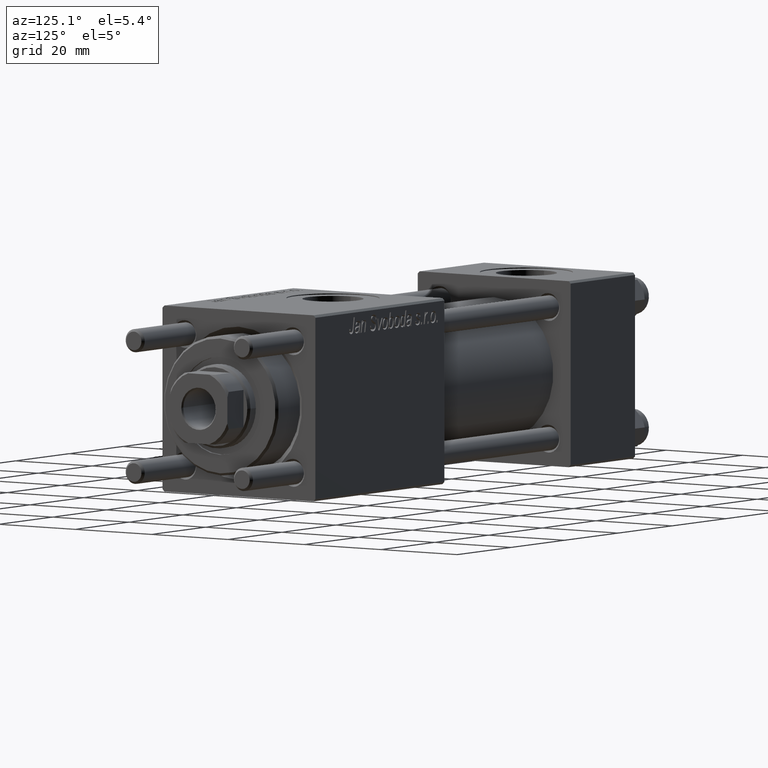
[diagram: clean part render]
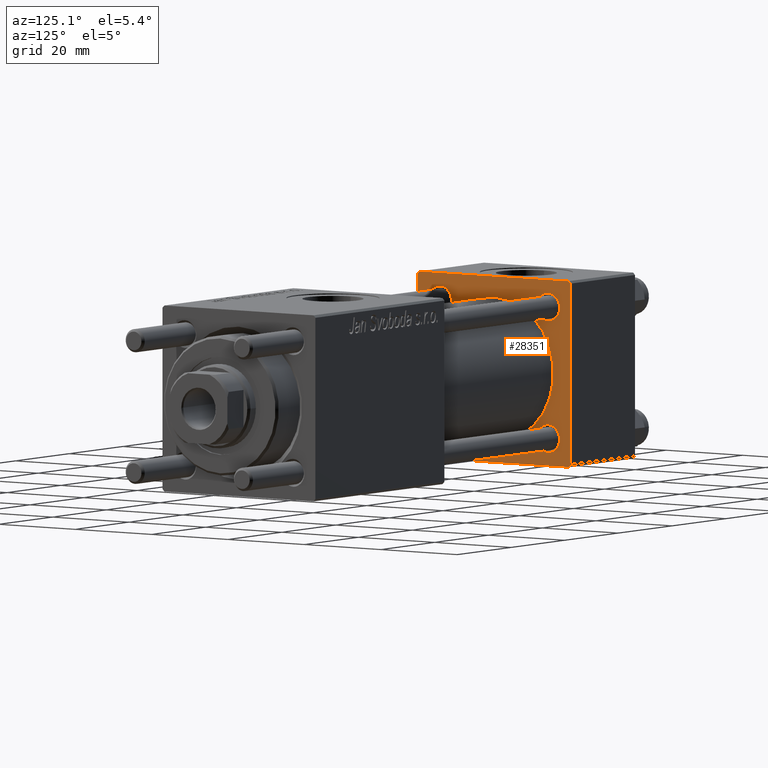
[diagram: same view with one face highlighted and labeled with its STEP entity id]
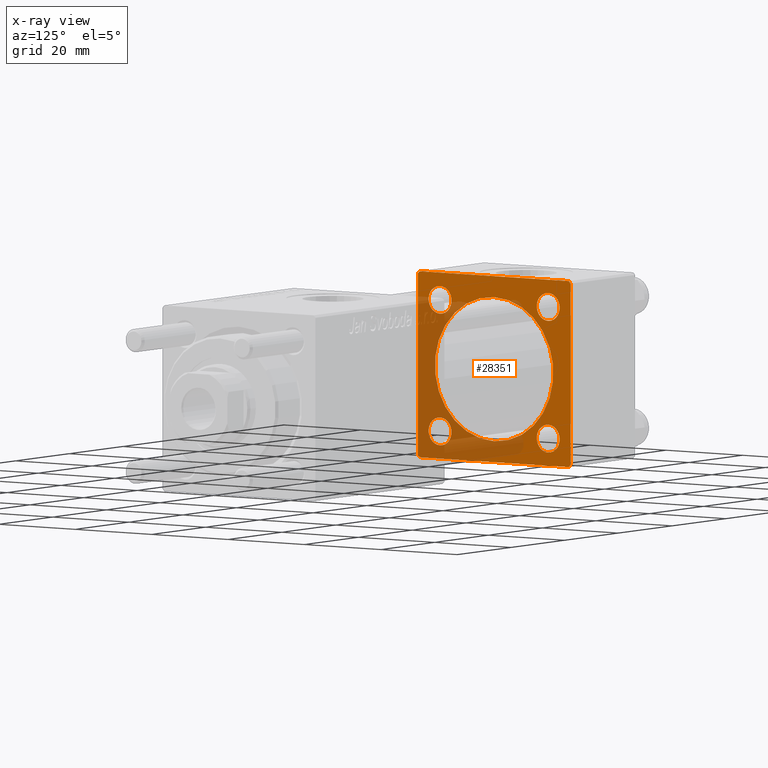
[diagram: x-ray of the same camera — body ghosted, the highlighted face saturated]
A machine part, auxiliary view. The second image highlights one B-rep face of the part: STEP entity #28351.
The next image is the same camera in x-ray: the body ghosted, the highlighted face saturated — about 40% of this face is hidden behind the body in this view.
In plain terms, the highlighted planar face has unit normal (-1, 0, 0).
Its self-contained STEP definition (entity closure, byte-faithful):
#465 = CARTESIAN_POINT ( 'NONE',  ( 24.00000000000000000, -19.50000000000000711, -20.00000000000000000 ) ) ;
#1455 = AXIS2_PLACEMENT_3D ( 'NONE', #35760, #9673, #42703 ) ;
#1502 = ORIENTED_EDGE ( 'NONE', *, *, #41085, .F. ) ;
#2047 = VERTEX_POINT ( 'NONE', #10583 ) ;
#2170 = CARTESIAN_POINT ( 'NONE',  ( 24.00000000000000000, 14.14999999999999858, -17.14999999999997726 ) ) ;
#2598 = CIRCLE ( 'NONE', #26363, 3.000000000000004441 ) ;
#3043 = CIRCLE ( 'NONE', #49737, 2.999999999999973355 ) ;
#3245 = CIRCLE ( 'NONE', #10591, 3.000000000000004441 ) ;
#3399 = CIRCLE ( 'NONE', #49163, 15.50000000000000000 ) ;
#3492 = ORIENTED_EDGE ( 'NONE', *, *, #8983, .F. ) ;
#3561 = CARTESIAN_POINT ( 'NONE',  ( 24.00000000000000000, -7.038826752868131828E-16, -15.50000000000000000 ) ) ;
#3633 = EDGE_CURVE ( 'NONE', #46264, #26709, #3245, .T. ) ;
#3929 = FACE_BOUND ( 'NONE', #23457, .T. ) ;
#3942 = VECTOR ( 'NONE', #40634, 1000.000000000000114 ) ;
#4045 = ORIENTED_EDGE ( 'NONE', *, *, #32135, .T. ) ;
#4428 = EDGE_CURVE ( 'NONE', #18234, #34125, #53621, .T. ) ;
#4508 = FACE_BOUND ( 'NONE', #38433, .T. ) ;
#4876 = CARTESIAN_POINT ( 'NONE',  ( 24.00000000000000000, 19.50000000000000711, -20.00000000000000711 ) ) ;
#6082 = CARTESIAN_POINT ( 'NONE',  ( 24.00000000000000000, -20.00000000000000000, -19.49999999999999645 ) ) ;
#6222 = DIRECTION ( 'NONE',  ( -1.000000000000000000, -0.000000000000000000, -0.000000000000000000 ) ) ;
#6750 = DIRECTION ( 'NONE',  ( 0.000000000000000000, 0.000000000000000000, -1.000000000000000000 ) ) ;
#6846 = VERTEX_POINT ( 'NONE', #43049 ) ;
#7362 = LINE ( 'NONE', #43157, #44113 ) ;
#7674 = ORIENTED_EDGE ( 'NONE', *, *, #49479, .T. ) ;
#8273 = CARTESIAN_POINT ( 'NONE',  ( 24.00000000000000000, 19.50000000000000000, 20.00000000000000000 ) ) ;
#8525 = VECTOR ( 'NONE', #16449, 999.9999999999998863 ) ;
#8688 = CARTESIAN_POINT ( 'NONE',  ( 24.00000000000000000, 19.50000000000000000, 20.00000000000000000 ) ) ;
#8983 = EDGE_CURVE ( 'NONE', #20603, #52058, #3399, .T. ) ;
#8991 = ORIENTED_EDGE ( 'NONE', *, *, #29021, .T. ) ;
#9624 = ORIENTED_EDGE ( 'NONE', *, *, #16831, .T. ) ;
#9673 = DIRECTION ( 'NONE',  ( -1.000000000000000000, -0.000000000000000000, -0.000000000000000000 ) ) ;
#10583 = CARTESIAN_POINT ( 'NONE',  ( 24.00000000000000000, -14.14999999999999503, -17.15000000000000924 ) ) ;
#10591 = AXIS2_PLACEMENT_3D ( 'NONE', #31453, #13961, #48927 ) ;
#11298 = EDGE_CURVE ( 'NONE', #26709, #46264, #43739, .T. ) ;
#11522 = CARTESIAN_POINT ( 'NONE',  ( 24.00000000000000000, -14.14999999999999503, -14.15000000000000391 ) ) ;
#11682 = DIRECTION ( 'NONE',  ( 1.000000000000000000, 0.000000000000000000, 0.000000000000000000 ) ) ;
#11735 = EDGE_CURVE ( 'NONE', #2047, #19619, #2598, .T. ) ;
#12066 = DIRECTION ( 'NONE',  ( 0.000000000000000000, 0.000000000000000000, 1.000000000000000000 ) ) ;
#12733 = EDGE_LOOP ( 'NONE', ( #26362, #31269 ) ) ;
#13441 = DIRECTION ( 'NONE',  ( 0.000000000000000000, -1.000000000000000000, 1.734723475976807094E-16 ) ) ;
#13927 = CARTESIAN_POINT ( 'NONE',  ( 24.00000000000000000, -14.14999999999999503, -11.15000000000000036 ) ) ;
#13958 = CARTESIAN_POINT ( 'NONE',  ( 24.00000000000000000, 14.14999999999999858, 11.15000000000002700 ) ) ;
#13961 = DIRECTION ( 'NONE',  ( -1.000000000000000000, -0.000000000000000000, -0.000000000000000000 ) ) ;
#13977 = VECTOR ( 'NONE', #41396, 1000.000000000000000 ) ;
#15042 = LINE ( 'NONE', #23921, #13977 ) ;
#16265 = DIRECTION ( 'NONE',  ( -1.000000000000000000, -0.000000000000000000, -0.000000000000000000 ) ) ;
#16449 = DIRECTION ( 'NONE',  ( 0.000000000000000000, -0.7071067811865425767, 0.7071067811865525687 ) ) ;
#16714 = AXIS2_PLACEMENT_3D ( 'NONE', #48070, #35960, #56102 ) ;
#16831 = EDGE_CURVE ( 'NONE', #19619, #2047, #36554, .T. ) ;
#17169 = CARTESIAN_POINT ( 'NONE',  ( 24.00000000000000000, 20.00000000000000000, -19.50000000000002132 ) ) ;
#17788 = VERTEX_POINT ( 'NONE', #17169 ) ;
#17809 = ORIENTED_EDGE ( 'NONE', *, *, #11298, .T. ) ;
#17982 = CARTESIAN_POINT ( 'NONE',  ( 24.00000000000000000, -19.50000000000000711, -20.00000000000000000 ) ) ;
#18210 = AXIS2_PLACEMENT_3D ( 'NONE', #11522, #37619, #12066 ) ;
#18234 = VERTEX_POINT ( 'NONE', #38223 ) ;
#18631 = ORIENTED_EDGE ( 'NONE', *, *, #4428, .T. ) ;
#19434 = CARTESIAN_POINT ( 'NONE',  ( 24.00000000000000000, -20.00000000000000355, 19.49999999999998224 ) ) ;
#19619 = VERTEX_POINT ( 'NONE', #13927 ) ;
#19995 = ORIENTED_EDGE ( 'NONE', *, *, #26323, .T. ) ;
#20438 = VERTEX_POINT ( 'NONE', #465 ) ;
#20603 = VERTEX_POINT ( 'NONE', #3561 ) ;
#21727 = EDGE_CURVE ( 'NONE', #30911, #17788, #36861, .T. ) ;
#21991 = FACE_OUTER_BOUND ( 'NONE', #29410, .T. ) ;
#23129 = DIRECTION ( 'NONE',  ( 0.000000000000000000, 0.000000000000000000, 1.000000000000000000 ) ) ;
#23176 = CARTESIAN_POINT ( 'NONE',  ( 24.00000000000000000, 14.14999999999999858, 17.14999999999997726 ) ) ;
#23457 = EDGE_LOOP ( 'NONE', ( #17809, #49941 ) ) ;
#23921 = CARTESIAN_POINT ( 'NONE',  ( 24.00000000000000000, 20.00000000000000000, 20.00000000000000000 ) ) ;
#24135 = VERTEX_POINT ( 'NONE', #40441 ) ;
#24578 = DIRECTION ( 'NONE',  ( 0.000000000000000000, 0.000000000000000000, 1.000000000000000000 ) ) ;
#24702 = LINE ( 'NONE', #25544, #42799 ) ;
#25544 = CARTESIAN_POINT ( 'NONE',  ( 24.00000000000000000, 20.00000000000000000, -19.50000000000002132 ) ) ;
#25667 = DIRECTION ( 'NONE',  ( 0.000000000000000000, 0.000000000000000000, 1.000000000000000000 ) ) ;
#25986 = VERTEX_POINT ( 'NONE', #8273 ) ;
#26323 = EDGE_CURVE ( 'NONE', #24135, #45559, #7362, .T. ) ;
#26362 = ORIENTED_EDGE ( 'NONE', *, *, #55756, .T. ) ;
#26363 = AXIS2_PLACEMENT_3D ( 'NONE', #34014, #16265, #51223 ) ;
#26709 = VERTEX_POINT ( 'NONE', #31076 ) ;
#28351 = ADVANCED_FACE ( 'NONE', ( #47498, #4508, #3929, #43475, #39186, #21991 ), #52369, .F. ) ;
#29015 = DIRECTION ( 'NONE',  ( -1.000000000000000000, -0.000000000000000000, -0.000000000000000000 ) ) ;
#29021 = EDGE_CURVE ( 'NONE', #30911, #25986, #48243, .T. ) ;
#29131 = ORIENTED_EDGE ( 'NONE', *, *, #44963, .T. ) ;
#29397 = EDGE_LOOP ( 'NONE', ( #45350, #9624 ) ) ;
#29410 = EDGE_LOOP ( 'NONE', ( #1502, #7674, #38100, #8991, #4045, #44415, #19995, #29131 ) ) ;
#30911 = VERTEX_POINT ( 'NONE', #36723 ) ;
#31076 = CARTESIAN_POINT ( 'NONE',  ( 24.00000000000000000, -14.14999999999999503, 11.15000000000000036 ) ) ;
#31269 = ORIENTED_EDGE ( 'NONE', *, *, #35718, .T. ) ;
#31453 = CARTESIAN_POINT ( 'NONE',  ( 24.00000000000000000, -14.14999999999999503, 14.15000000000000391 ) ) ;
#31465 = AXIS2_PLACEMENT_3D ( 'NONE', #55638, #38435, #51331 ) ;
#31970 = EDGE_CURVE ( 'NONE', #52058, #20603, #39704, .T. ) ;
#32135 = EDGE_CURVE ( 'NONE', #25986, #6846, #15042, .T. ) ;
#33144 = CARTESIAN_POINT ( 'NONE',  ( 24.00000000000000000, -2.602085213965210642E-15, 15.50000000000000000 ) ) ;
#33335 = EDGE_CURVE ( 'NONE', #34125, #18234, #49698, .T. ) ;
#33977 = EDGE_CURVE ( 'NONE', #6846, #24135, #36360, .T. ) ;
#34014 = CARTESIAN_POINT ( 'NONE',  ( 24.00000000000000000, -14.14999999999999503, -14.15000000000000391 ) ) ;
#34125 = VERTEX_POINT ( 'NONE', #2170 ) ;
#34942 = CARTESIAN_POINT ( 'NONE',  ( 24.00000000000000000, 20.00000000000000000, -20.00000000000000711 ) ) ;
#35718 = EDGE_CURVE ( 'NONE', #50905, #42714, #3043, .T. ) ;
#35760 = CARTESIAN_POINT ( 'NONE',  ( 24.00000000000000000, 14.14999999999999858, -14.15000000000000036 ) ) ;
#35960 = DIRECTION ( 'NONE',  ( -1.000000000000000000, 0.000000000000000000, -0.000000000000000000 ) ) ;
#36300 = CARTESIAN_POINT ( 'NONE',  ( 24.00000000000000000, 20.00000000000000000, 20.00000000000000000 ) ) ;
#36360 = LINE ( 'NONE', #19434, #3942 ) ;
#36554 = CIRCLE ( 'NONE', #18210, 3.000000000000004441 ) ;
#36723 = CARTESIAN_POINT ( 'NONE',  ( 24.00000000000000000, 20.00000000000000000, 19.49999999999999289 ) ) ;
#36861 = LINE ( 'NONE', #36300, #40328 ) ;
#37058 = CARTESIAN_POINT ( 'NONE',  ( 24.00000000000000000, 14.14999999999999858, -14.15000000000000036 ) ) ;
#37619 = DIRECTION ( 'NONE',  ( -1.000000000000000000, -0.000000000000000000, -0.000000000000000000 ) ) ;
#37623 = DIRECTION ( 'NONE',  ( -1.000000000000000000, -0.000000000000000000, -0.000000000000000000 ) ) ;
#38100 = ORIENTED_EDGE ( 'NONE', *, *, #21727, .F. ) ;
#38223 = CARTESIAN_POINT ( 'NONE',  ( 24.00000000000000000, 14.14999999999999858, -11.15000000000002700 ) ) ;
#38433 = EDGE_LOOP ( 'NONE', ( #45657, #18631 ) ) ;
#38435 = DIRECTION ( 'NONE',  ( -1.000000000000000000, -0.000000000000000000, -0.000000000000000000 ) ) ;
#38873 = DIRECTION ( 'NONE',  ( 0.000000000000000000, 8.673617379884036705E-17, -1.000000000000000000 ) ) ;
#38922 = VECTOR ( 'NONE', #13441, 1000.000000000000000 ) ;
#39033 = ORIENTED_EDGE ( 'NONE', *, *, #31970, .F. ) ;
#39186 = FACE_BOUND ( 'NONE', #55735, .T. ) ;
#39704 = CIRCLE ( 'NONE', #51474, 15.50000000000000000 ) ;
#40318 = DIRECTION ( 'NONE',  ( 0.000000000000000000, 0.7071067811865401342, -0.7071067811865549002 ) ) ;
#40328 = VECTOR ( 'NONE', #6750, 1000.000000000000000 ) ;
#40441 = CARTESIAN_POINT ( 'NONE',  ( 24.00000000000000000, -20.00000000000000355, 19.49999999999998224 ) ) ;
#40634 = DIRECTION ( 'NONE',  ( -0.000000000000000000, -0.7071067811865500152, -0.7071067811865451302 ) ) ;
#41085 = EDGE_CURVE ( 'NONE', #46407, #20438, #43525, .T. ) ;
#41396 = DIRECTION ( 'NONE',  ( 0.000000000000000000, -1.000000000000000000, -2.602085213965210149E-16 ) ) ;
#42451 = DIRECTION ( 'NONE',  ( -0.000000000000000000, 0.7071067811865524577, 0.7071067811865426878 ) ) ;
#42575 = CARTESIAN_POINT ( 'NONE',  ( 24.00000000000000000, -2.602085213965210642E-15, 0.000000000000000000 ) ) ;
#42703 = DIRECTION ( 'NONE',  ( 0.000000000000000000, 0.000000000000000000, 1.000000000000000000 ) ) ;
#42714 = VERTEX_POINT ( 'NONE', #13958 ) ;
#42799 = VECTOR ( 'NONE', #42451, 1000.000000000000000 ) ;
#43049 = CARTESIAN_POINT ( 'NONE',  ( 24.00000000000000000, -19.49999999999999289, 19.99999999999998934 ) ) ;
#43157 = CARTESIAN_POINT ( 'NONE',  ( 24.00000000000000000, -20.00000000000000355, 19.99999999999998934 ) ) ;
#43475 = FACE_BOUND ( 'NONE', #12733, .T. ) ;
#43525 = LINE ( 'NONE', #34942, #38922 ) ;
#43739 = CIRCLE ( 'NONE', #52021, 3.000000000000004441 ) ;
#44113 = VECTOR ( 'NONE', #38873, 1000.000000000000000 ) ;
#44415 = ORIENTED_EDGE ( 'NONE', *, *, #33977, .T. ) ;
#44963 = EDGE_CURVE ( 'NONE', #45559, #20438, #53515, .T. ) ;
#45350 = ORIENTED_EDGE ( 'NONE', *, *, #11735, .T. ) ;
#45559 = VERTEX_POINT ( 'NONE', #6082 ) ;
#45657 = ORIENTED_EDGE ( 'NONE', *, *, #33335, .T. ) ;
#46264 = VERTEX_POINT ( 'NONE', #49643 ) ;
#46407 = VERTEX_POINT ( 'NONE', #4876 ) ;
#46761 = CARTESIAN_POINT ( 'NONE',  ( 24.00000000000000000, -14.14999999999999503, 14.15000000000000391 ) ) ;
#47045 = DIRECTION ( 'NONE',  ( 0.000000000000000000, 0.000000000000000000, 1.000000000000000000 ) ) ;
#47263 = VECTOR ( 'NONE', #40318, 1000.000000000000000 ) ;
#47498 = FACE_BOUND ( 'NONE', #29397, .T. ) ;
#48070 = CARTESIAN_POINT ( 'NONE',  ( 24.00000000000000000, 0.000000000000000000, 0.000000000000000000 ) ) ;
#48243 = LINE ( 'NONE', #8688, #8525 ) ;
#48927 = DIRECTION ( 'NONE',  ( 0.000000000000000000, 0.000000000000000000, 1.000000000000000000 ) ) ;
#49163 = AXIS2_PLACEMENT_3D ( 'NONE', #54125, #11682, #24578 ) ;
#49220 = CARTESIAN_POINT ( 'NONE',  ( 24.00000000000000000, 14.14999999999999858, 14.15000000000000036 ) ) ;
#49479 = EDGE_CURVE ( 'NONE', #46407, #17788, #24702, .T. ) ;
#49643 = CARTESIAN_POINT ( 'NONE',  ( 24.00000000000000000, -14.14999999999999503, 17.15000000000000924 ) ) ;
#49698 = CIRCLE ( 'NONE', #56115, 2.999999999999976463 ) ;
#49737 = AXIS2_PLACEMENT_3D ( 'NONE', #49220, #6222, #23129 ) ;
#49941 = ORIENTED_EDGE ( 'NONE', *, *, #3633, .T. ) ;
#50234 = DIRECTION ( 'NONE',  ( 0.000000000000000000, 0.000000000000000000, 1.000000000000000000 ) ) ;
#50905 = VERTEX_POINT ( 'NONE', #23176 ) ;
#51223 = DIRECTION ( 'NONE',  ( 0.000000000000000000, 0.000000000000000000, 1.000000000000000000 ) ) ;
#51331 = DIRECTION ( 'NONE',  ( 0.000000000000000000, 0.000000000000000000, 1.000000000000000000 ) ) ;
#51474 = AXIS2_PLACEMENT_3D ( 'NONE', #42575, #52323, #25667 ) ;
#52021 = AXIS2_PLACEMENT_3D ( 'NONE', #46761, #29015, #47045 ) ;
#52058 = VERTEX_POINT ( 'NONE', #33144 ) ;
#52323 = DIRECTION ( 'NONE',  ( 1.000000000000000000, 0.000000000000000000, 0.000000000000000000 ) ) ;
#52369 = PLANE ( 'NONE',  #16714 ) ;
#53515 = LINE ( 'NONE', #17982, #47263 ) ;
#53621 = CIRCLE ( 'NONE', #1455, 2.999999999999976463 ) ;
#54125 = CARTESIAN_POINT ( 'NONE',  ( 24.00000000000000000, -2.602085213965210642E-15, 0.000000000000000000 ) ) ;
#55638 = CARTESIAN_POINT ( 'NONE',  ( 24.00000000000000000, 14.14999999999999858, 14.15000000000000036 ) ) ;
#55735 = EDGE_LOOP ( 'NONE', ( #39033, #3492 ) ) ;
#55756 = EDGE_CURVE ( 'NONE', #42714, #50905, #56156, .T. ) ;
#56102 = DIRECTION ( 'NONE',  ( -0.000000000000000000, 0.000000000000000000, 1.000000000000000000 ) ) ;
#56115 = AXIS2_PLACEMENT_3D ( 'NONE', #37058, #37623, #50234 ) ;
#56156 = CIRCLE ( 'NONE', #31465, 2.999999999999973355 ) ;